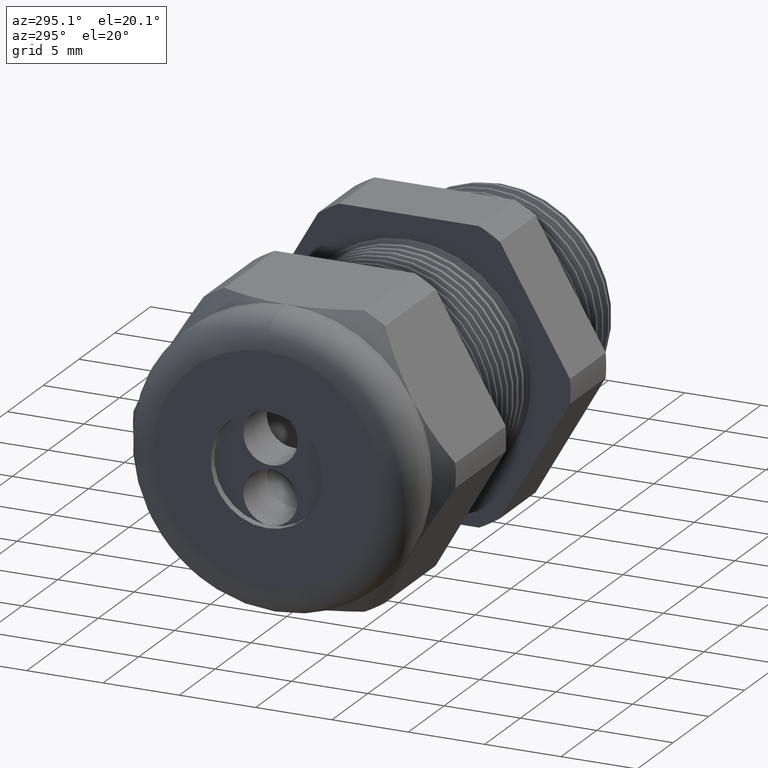
[diagram: clean part render]
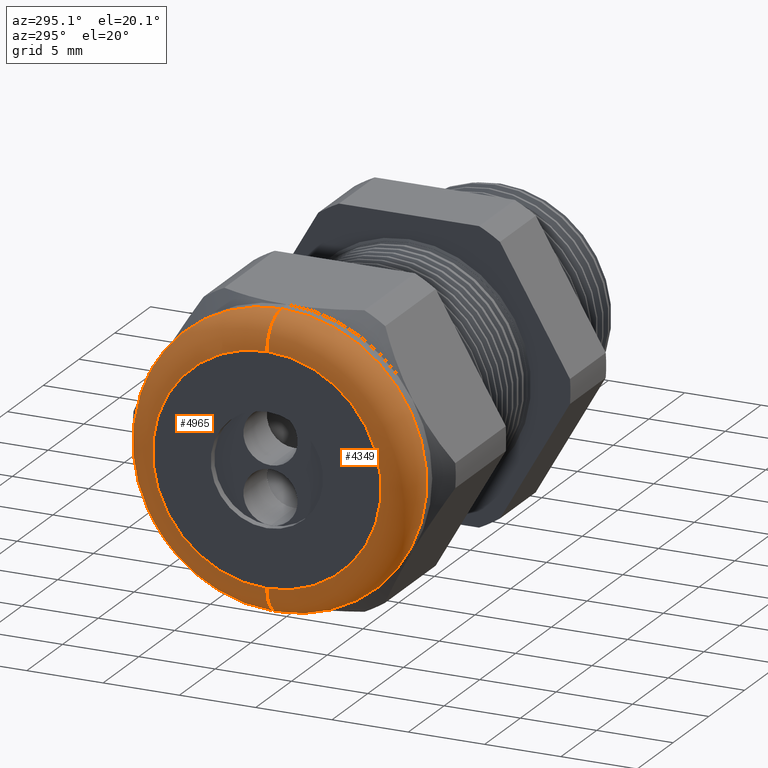
[diagram: same view with one multi-face feature highlighted, each face labeled with its STEP entity id]
A machine part, auxiliary view. The highlighted faces form ONE feature: a constant-radius fillet chain: 2 tangent blend faces with common blend radius 2.032 mm. The faces share edges in the B-rep.
Their STEP definitions:
[1] entity #4965 (Torus):
#595 = CARTESIAN_POINT ( 'NONE',  ( -1.209999999999999700, 0.0000000000000000000, -0.3750000000000000600 ) ) ;
#596 = DIRECTION ( 'NONE',  ( 0.0000000000000000000, 0.0000000000000000000, 1.000000000000000000 ) ) ;
#597 = DIRECTION ( 'NONE',  ( 1.000000000000000000, 0.0000000000000000000, 0.0000000000000000000 ) ) ;
#598 = CARTESIAN_POINT ( 'NONE',  ( -1.209999999999999700, 0.0000000000000000000, 0.0000000000000000000 ) ) ;
#599 = AXIS2_PLACEMENT_3D ( 'NONE', #598, #597, #596 ) ;
#600 = CIRCLE ( 'NONE', #599, 0.3750000000000000600 ) ;
#601 = CARTESIAN_POINT ( 'NONE',  ( -1.209999999999999700, 4.592425496802575500E-017, 0.3750000000000000600 ) ) ;
#3216 = DIRECTION ( 'NONE',  ( 0.0000000000000000000, -1.224646799147353500E-016, 1.000000000000000000 ) ) ;
#3217 = DIRECTION ( 'NONE',  ( 0.0000000000000000000, 1.000000000000000000, 1.224646799147353200E-016 ) ) ;
#3218 = CARTESIAN_POINT ( 'NONE',  ( -1.209999999999999700, 3.612708057484692600E-017, -0.2950000000000000400 ) ) ;
#3219 = AXIS2_PLACEMENT_3D ( 'NONE', #3218, #3217, #3216 ) ;
#3220 = CIRCLE ( 'NONE', #3219, 0.08000000000000000200 ) ;
#3222 = CARTESIAN_POINT ( 'NONE',  ( -1.289999999999999600, 4.102566777143634000E-017, -0.2950000000000000400 ) ) ;
#3223 = DIRECTION ( 'NONE',  ( 0.0000000000000000000, 0.0000000000000000000, 1.000000000000000000 ) ) ;
#3224 = DIRECTION ( 'NONE',  ( -1.000000000000000000, 0.0000000000000000000, 0.0000000000000000000 ) ) ;
#3225 = CARTESIAN_POINT ( 'NONE',  ( -1.289999999999999600, 0.0000000000000000000, 0.0000000000000000000 ) ) ;
#3226 = AXIS2_PLACEMENT_3D ( 'NONE', #3225, #3224, #3223 ) ;
#3227 = CIRCLE ( 'NONE', #3226, 0.2950000000000000400 ) ;
#3228 = CARTESIAN_POINT ( 'NONE',  ( -1.289999999999999600, 0.0000000000000000000, 0.2950000000000000400 ) ) ;
#3229 = DIRECTION ( 'NONE',  ( 0.0000000000000000000, 0.0000000000000000000, -1.000000000000000000 ) ) ;
#3230 = DIRECTION ( 'NONE',  ( 0.0000000000000000000, -1.000000000000000000, 0.0000000000000000000 ) ) ;
#3231 = AXIS2_PLACEMENT_3D ( 'NONE', #3238, #3230, #3229 ) ;
#3232 = CIRCLE ( 'NONE', #3231, 0.08000000000000000200 ) ;
#3238 = CARTESIAN_POINT ( 'NONE',  ( -1.209999999999999700, 0.0000000000000000000, 0.2950000000000000400 ) ) ;
#3258 = DIRECTION ( 'NONE',  ( 0.0000000000000000000, 0.0000000000000000000, 1.000000000000000000 ) ) ;
#3259 = DIRECTION ( 'NONE',  ( -1.000000000000000000, 0.0000000000000000000, 0.0000000000000000000 ) ) ;
#3260 = CARTESIAN_POINT ( 'NONE',  ( -1.209999999999999700, 0.0000000000000000000, 0.0000000000000000000 ) ) ;
#3261 = AXIS2_PLACEMENT_3D ( 'NONE', #3260, #3259, #3258 ) ;
#3262 = TOROIDAL_SURFACE ( 'NONE', #3261, 0.2950000000000000400, 0.08000000000000000200 ) ;
#3263 = FACE_OUTER_BOUND ( 'NONE', #3433, .T. ) ;
#3428 = VERTEX_POINT ( 'NONE', #601 ) ;
#3430 = EDGE_CURVE ( 'NONE', #3431, #3428, #600, .T. ) ;
#3431 = VERTEX_POINT ( 'NONE', #595 ) ;
#3432 = ORIENTED_EDGE ( 'NONE', *, *, #3430, .F. ) ;
#3433 = EDGE_LOOP ( 'NONE', ( #3432, #4955, #4953, #4944 ) ) ;
#4944 = ORIENTED_EDGE ( 'NONE', *, *, #4950, .F. ) ;
#4950 = EDGE_CURVE ( 'NONE', #3428, #4951, #3232, .T. ) ;
#4951 = VERTEX_POINT ( 'NONE', #3228 ) ;
#4952 = EDGE_CURVE ( 'NONE', #4951, #4954, #3227, .T. ) ;
#4953 = ORIENTED_EDGE ( 'NONE', *, *, #4952, .F. ) ;
#4954 = VERTEX_POINT ( 'NONE', #3222 ) ;
#4955 = ORIENTED_EDGE ( 'NONE', *, *, #4956, .T. ) ;
#4956 = EDGE_CURVE ( 'NONE', #3431, #4954, #3220, .T. ) ;
#4965 = ADVANCED_FACE ( 'NONE', ( #3263 ), #3262, .T. ) ;
[2] entity #4349 (Torus):
#595 = CARTESIAN_POINT ( 'NONE',  ( -1.209999999999999700, 0.0000000000000000000, -0.3750000000000000600 ) ) ;
#601 = CARTESIAN_POINT ( 'NONE',  ( -1.209999999999999700, 4.592425496802575500E-017, 0.3750000000000000600 ) ) ;
#2044 = DIRECTION ( 'NONE',  ( 0.0000000000000000000, 0.0000000000000000000, 1.000000000000000000 ) ) ;
#2045 = DIRECTION ( 'NONE',  ( 1.000000000000000000, 0.0000000000000000000, 0.0000000000000000000 ) ) ;
#2046 = AXIS2_PLACEMENT_3D ( 'NONE', #2052, #2045, #2044 ) ;
#2047 = CIRCLE ( 'NONE', #2046, 0.3750000000000000600 ) ;
#2052 = CARTESIAN_POINT ( 'NONE',  ( -1.209999999999999700, 0.0000000000000000000, 0.0000000000000000000 ) ) ;
#2074 = DIRECTION ( 'NONE',  ( 0.0000000000000000000, 0.0000000000000000000, 1.000000000000000000 ) ) ;
#2075 = DIRECTION ( 'NONE',  ( -1.000000000000000000, 0.0000000000000000000, 0.0000000000000000000 ) ) ;
#2076 = CARTESIAN_POINT ( 'NONE',  ( -1.289999999999999600, 0.0000000000000000000, 0.0000000000000000000 ) ) ;
#2077 = AXIS2_PLACEMENT_3D ( 'NONE', #2076, #2075, #2074 ) ;
#2078 = CIRCLE ( 'NONE', #2077, 0.2950000000000000400 ) ;
#2313 = DIRECTION ( 'NONE',  ( 0.0000000000000000000, 0.0000000000000000000, 1.000000000000000000 ) ) ;
#2314 = DIRECTION ( 'NONE',  ( -1.000000000000000000, 0.0000000000000000000, 0.0000000000000000000 ) ) ;
#2315 = AXIS2_PLACEMENT_3D ( 'NONE', #2323, #2314, #2313 ) ;
#2316 = TOROIDAL_SURFACE ( 'NONE', #2315, 0.2950000000000000400, 0.08000000000000000200 ) ;
#2317 = FACE_OUTER_BOUND ( 'NONE', #4350, .T. ) ;
#2323 = CARTESIAN_POINT ( 'NONE',  ( -1.209999999999999700, 0.0000000000000000000, 0.0000000000000000000 ) ) ;
#3216 = DIRECTION ( 'NONE',  ( 0.0000000000000000000, -1.224646799147353500E-016, 1.000000000000000000 ) ) ;
#3217 = DIRECTION ( 'NONE',  ( 0.0000000000000000000, 1.000000000000000000, 1.224646799147353200E-016 ) ) ;
#3218 = CARTESIAN_POINT ( 'NONE',  ( -1.209999999999999700, 3.612708057484692600E-017, -0.2950000000000000400 ) ) ;
#3219 = AXIS2_PLACEMENT_3D ( 'NONE', #3218, #3217, #3216 ) ;
#3220 = CIRCLE ( 'NONE', #3219, 0.08000000000000000200 ) ;
#3222 = CARTESIAN_POINT ( 'NONE',  ( -1.289999999999999600, 4.102566777143634000E-017, -0.2950000000000000400 ) ) ;
#3228 = CARTESIAN_POINT ( 'NONE',  ( -1.289999999999999600, 0.0000000000000000000, 0.2950000000000000400 ) ) ;
#3229 = DIRECTION ( 'NONE',  ( 0.0000000000000000000, 0.0000000000000000000, -1.000000000000000000 ) ) ;
#3230 = DIRECTION ( 'NONE',  ( 0.0000000000000000000, -1.000000000000000000, 0.0000000000000000000 ) ) ;
#3231 = AXIS2_PLACEMENT_3D ( 'NONE', #3238, #3230, #3229 ) ;
#3232 = CIRCLE ( 'NONE', #3231, 0.08000000000000000200 ) ;
#3238 = CARTESIAN_POINT ( 'NONE',  ( -1.209999999999999700, 0.0000000000000000000, 0.2950000000000000400 ) ) ;
#3428 = VERTEX_POINT ( 'NONE', #601 ) ;
#3431 = VERTEX_POINT ( 'NONE', #595 ) ;
#4178 = EDGE_CURVE ( 'NONE', #3428, #3431, #2047, .T. ) ;
#4196 = EDGE_CURVE ( 'NONE', #4954, #4951, #2078, .T. ) ;
#4349 = ADVANCED_FACE ( 'NONE', ( #2317 ), #2316, .T. ) ;
#4350 = EDGE_LOOP ( 'NONE', ( #4351, #4352, #4353, #4354 ) ) ;
#4351 = ORIENTED_EDGE ( 'NONE', *, *, #4956, .F. ) ;
#4352 = ORIENTED_EDGE ( 'NONE', *, *, #4178, .F. ) ;
#4353 = ORIENTED_EDGE ( 'NONE', *, *, #4950, .T. ) ;
#4354 = ORIENTED_EDGE ( 'NONE', *, *, #4196, .F. ) ;
#4950 = EDGE_CURVE ( 'NONE', #3428, #4951, #3232, .T. ) ;
#4951 = VERTEX_POINT ( 'NONE', #3228 ) ;
#4954 = VERTEX_POINT ( 'NONE', #3222 ) ;
#4956 = EDGE_CURVE ( 'NONE', #3431, #4954, #3220, .T. ) ;